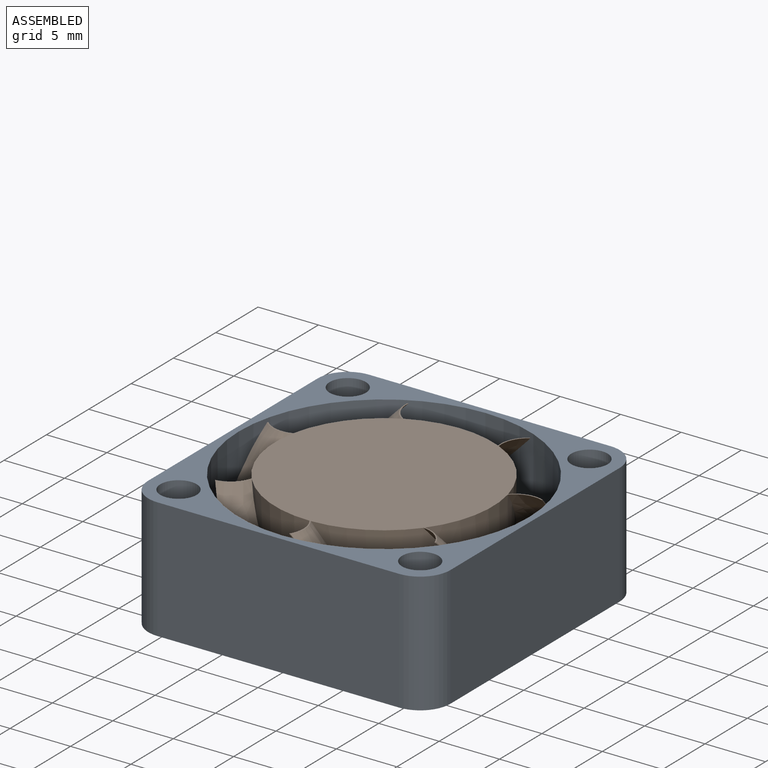
[diagram: assembled view]
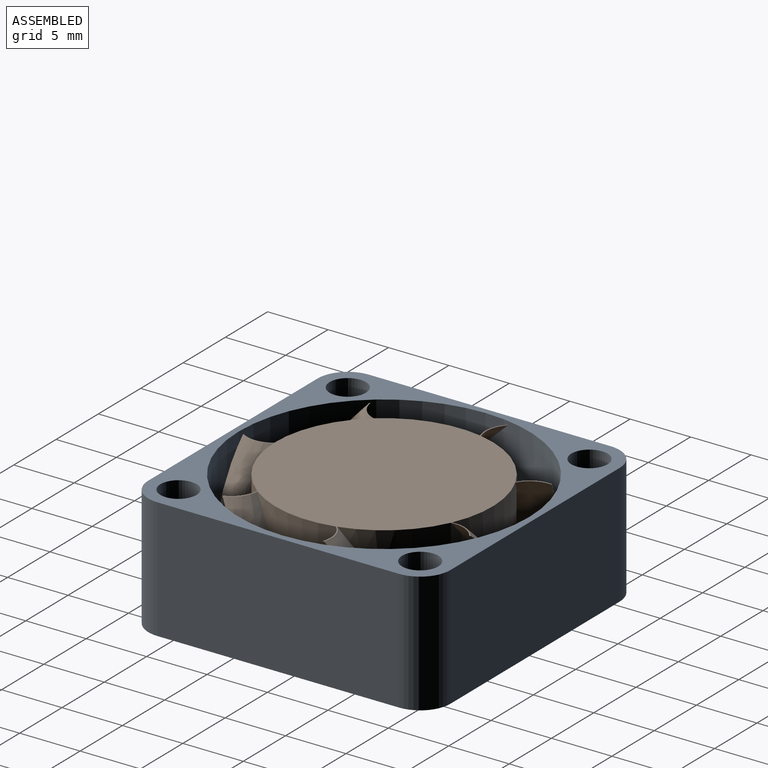
[diagram: assembled view, second angle]
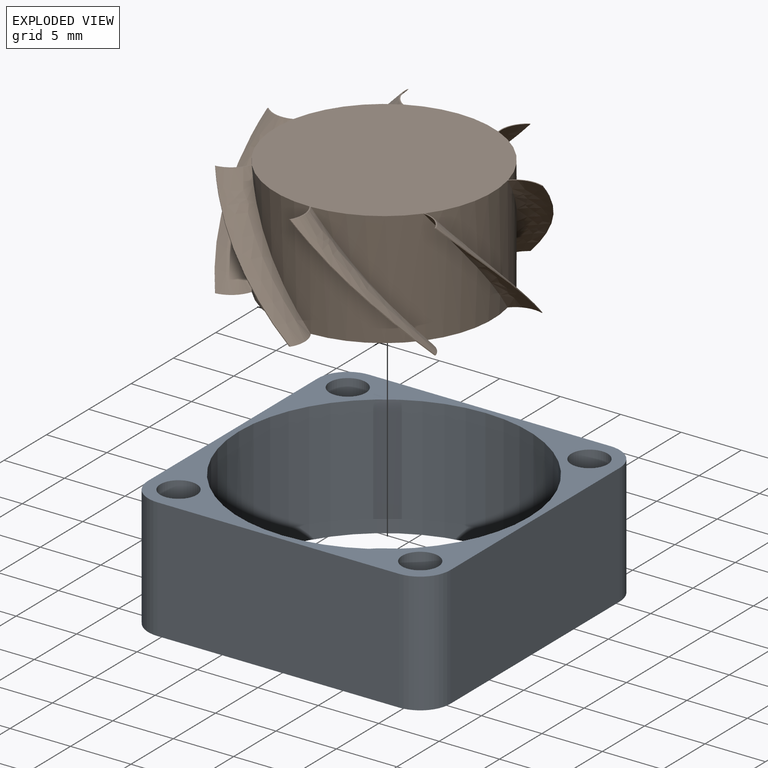
[diagram: exploded view]
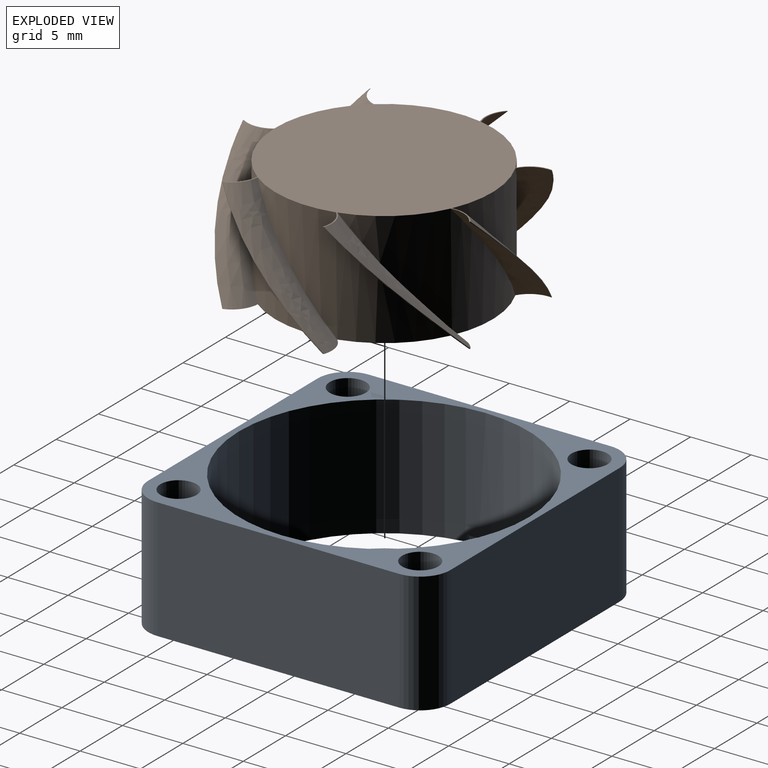
[diagram: exploded view, second angle]
ASSEMBLY  parts=2 mates=2
PART A: 37 faces, bbox 25x25x10 mm
  f0: plane 20x10mm, normal (-1,0,0), area 200mm2, adj f1,f10,f13,f14
  f1: cylinder r=2.5mm len=10mm, axis (0,0,-1), area 39.3mm2, adj f0,f2,f13,f14
  f2: plane 20x10mm, normal (0,-1,0), area 200mm2, adj f1,f3,f13,f14
  f3: cylinder r=2.5mm len=10mm, axis (0,0,-1), area 39.3mm2, adj f2,f4,f13,f14
  f4: plane 20x10mm, normal (1,0,0), area 200mm2, adj f3,f5,f13,f14
  f5: cylinder r=2.5mm len=10mm, axis (0,0,-1), area 39.3mm2, adj f4,f6,f13,f14
  f6: plane 20x10mm, normal (0,1,0), area 200mm2, adj f5,f10,f13,f14
  f7: cylinder r=1.5mm len=10mm, axis (0,0,-1), area 94.2mm2, adj f13,f14
  f8: cylinder r=1.5mm len=10mm, axis (0,0,-1), area 94.2mm2, adj f13,f14
  f9: cylinder r=12mm len=24mm, axis (0,0,-1), area 749.3mm2, adj f13,f14,f24,f31,f32,f33,f34,f35
  f10: cylinder r=2.5mm len=10mm, axis (0,0,-1), area 39.3mm2, adj f0,f6,f13,f14
  f11: cylinder r=1.5mm len=10mm, axis (0,0,-1), area 94.2mm2, adj f13,f14
  f12: cylinder r=1.5mm len=10mm, axis (0,0,-1), area 94.2mm2, adj f13,f14
  f13: plane 25x25mm, normal (0,0,1), area 139mm2, adj f0,f1,f2,f3,f4,f5,f6,f7
  f14: plane 25x25mm, normal (0,0,-1), area 387.6mm2, adj f0,f1,f2,f3,f4,f5,f6,f7
  f15: cylinder r=8.5mm len=11.35mm, axis (0,0,-1), area 7.5mm2, adj f14,f24,f25,f26
  f16: plane 2.19x1.26mm, normal (-0.87,0.5,0), area 1.3mm2, adj f14,f24,f26,f31
  f17: plane 2.19x1.26mm, normal (0.87,-0.5,0), area 1.3mm2, adj f14,f24,f27,f32
  f18: cylinder r=8.5mm len=13.1mm, axis (0,0,-1), area 7.5mm2, adj f14,f24,f27,f28
  f19: plane 2.19x1.26mm, normal (0.87,0.5,0), area 1.3mm2, adj f14,f24,f28,f33
  f20: plane 2.19x1.26mm, normal (-0.87,-0.5,0), area 1.3mm2, adj f14,f24,f29,f34
  f21: cylinder r=8.5mm len=11.35mm, axis (0,0,-1), area 7.5mm2, adj f14,f24,f29,f30
  f22: plane 2.53x0.5mm, normal (0,-1,0), area 1.3mm2, adj f14,f24,f30,f35
  f23: plane 2.53x0.5mm, normal (0,1,0), area 1.3mm2, adj f14,f24,f25,f36
  f24: plane 22.17x20.5mm, normal (0,0,1), area 248.7mm2, adj f9,f15,f16,f17,f18,f19,f20,f21
  f25: cylinder r=0.5mm len=0.5mm, axis (0,0,-1), area 0.4mm2, adj f14,f15,f23,f24
  f26: cylinder r=0.5mm len=0.61mm, axis (0,0,-1), area 0.4mm2, adj f14,f15,f16,f24
  f27: cylinder r=0.5mm len=0.64mm, axis (0,0,-1), area 0.4mm2, adj f14,f17,f18,f24
  f28: cylinder r=0.5mm len=0.64mm, axis (0,0,-1), area 0.4mm2, adj f14,f18,f19,f24
  f29: cylinder r=0.5mm len=0.61mm, axis (0,0,-1), area 0.4mm2, adj f14,f20,f21,f24
  f30: cylinder r=0.5mm len=0.5mm, axis (0,0,-1), area 0.4mm2, adj f14,f21,f22,f24
  f31: cylinder r=0.5mm len=0.71mm, axis (0,0,-1), area 0.4mm2, adj f9,f14,f16,f24
  f32: cylinder r=0.5mm len=0.74mm, axis (0,0,-1), area 0.4mm2, adj f9,f14,f17,f24
  f33: cylinder r=0.5mm len=0.74mm, axis (0,0,-1), area 0.4mm2, adj f9,f14,f19,f24
  f34: cylinder r=0.5mm len=0.71mm, axis (0,0,-1), area 0.4mm2, adj f9,f14,f20,f24
  f35: cylinder r=0.5mm len=0.57mm, axis (0,0,-1), area 0.4mm2, adj f9,f14,f22,f24
  f36: cylinder r=0.5mm len=0.57mm, axis (0,0,-1), area 0.4mm2, adj f9,f14,f23,f24
PART B: 32 faces, bbox 23.6x23x14.3 mm
  f0: cylinder r=9mm len=10.96mm, axis (0,0,-1), area 75.8mm2, adj f7,f8,f26,f31
  f1: cylinder r=9mm len=13.66mm, axis (0,0,-1), area 75.8mm2, adj f7,f8,f23,f28
  f2: cylinder r=9mm len=12.63mm, axis (0,0,-1), area 75.8mm2, adj f7,f8,f20,f25
  f3: cylinder r=9mm len=12.62mm, axis (0,0,-1), area 75.8mm2, adj f7,f8,f17,f22
  f4: cylinder r=9mm len=13.66mm, axis (0,0,-1), area 75.8mm2, adj f7,f8,f14,f19
  f5: cylinder r=9mm len=10.95mm, axis (0,0,-1), area 75.8mm2, adj f7,f8,f11,f16
  f6: cylinder r=9mm len=14.01mm, axis (0,0,-1), area 75.8mm2, adj f7,f8,f13,f29
  f7: plane 22.43x21.86mm, normal (0,0,1), area 256.2mm2, adj f0,f1,f2,f3,f4,f5,f6,f11
  f8: plane 22.43x21.86mm, normal (0,0,-1), area 29.2mm2, adj f0,f1,f2,f3,f4,f5,f6,f9
  f9: cylinder r=8.5mm len=17mm, axis (0,0,-1), area 480.7mm2, adj f8,f10
  f10: plane 17x17mm, normal (0,0,-1), area 227mm2, adj f9
  f11: bspline ~14.25x11.68mm, area 34mm2, adj f5,f7,f8,f12
  f12: bspline ~14.25x11.26mm, area 1mm2, adj f7,f8,f11,f13
  f13: bspline ~14.25x11.76mm, area 34mm2, adj f6,f7,f8,f12
  f14: bspline ~14.33x14.25mm, area 34mm2, adj f4,f7,f8,f15
  f15: bspline ~14.41x14.25mm, area 1mm2, adj f7,f8,f14,f16
  f16: bspline ~14.33x14.25mm, area 34mm2, adj f5,f7,f8,f15
  f17: bspline ~14.25x11.24mm, area 34mm2, adj f3,f7,f8,f18
  f18: bspline ~14.25x11.26mm, area 1mm2, adj f7,f8,f17,f19
  f19: bspline ~14.25x11.16mm, area 34mm2, adj f4,f7,f8,f18
  f20: bspline ~14.25x14.08mm, area 34mm2, adj f2,f7,f8,f21
  f21: bspline ~14.25x14.04mm, area 1mm2, adj f7,f8,f20,f22
  f22: bspline ~14.25x14.11mm, area 34mm2, adj f3,f7,f8,f21
  f23: bspline ~14.25x12.94mm, area 34mm2, adj f1,f7,f8,f24
  f24: bspline ~14.25x12.98mm, area 1mm2, adj f7,f8,f23,f25
  f25: bspline ~14.25x12.88mm, area 34mm2, adj f2,f7,f8,f24
  f26: bspline ~14.25x13.21mm, area 34mm2, adj f0,f7,f8,f27
  f27: bspline ~14.25x12.98mm, area 1mm2, adj f7,f8,f26,f28
  f28: bspline ~14.25x13.26mm, area 34mm2, adj f1,f7,f8,f27
  f29: bspline ~14.25x13.98mm, area 34mm2, adj f6,f7,f8,f30
  f30: bspline ~14.25x14.04mm, area 1mm2, adj f7,f8,f29,f31
  f31: bspline ~14.25x13.95mm, area 34mm2, adj f0,f7,f8,f30
PLACE A t=(0.36,-0.6,-4.96)mm fixed
PLACE B rot(axis=(0,0,1),1.2deg) t=(0.36,-0.6,-4.46)mm
MATE planar B.f8 <-> A.f9  axis (0,0,-1) through (-6.59,-6.32,-4.46)mm
MATE cylindrical B.f0 <-> A.f9  axis (0,0,-1) through (0.36,-0.6,0.29)mm
